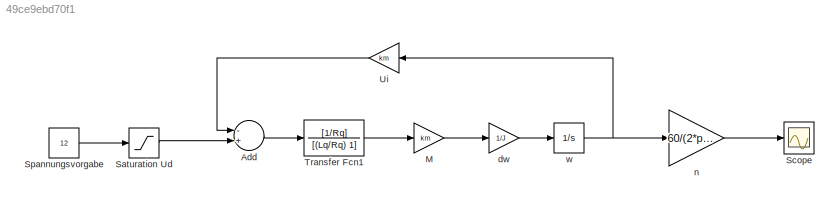
MODEL slx_49ce9ebd70f1
KIND model
CONFIG AbsTol = auto
CONFIG FixedStep = T_tast
CONFIG MaxStep = 0.8
CONFIG MinStep = auto
CONFIG PostLoadFcn = , if any(exist('dsrtsu_mdlpostloadfcn', 'file') == [2, 3, 6]), try dsrtsu_mdlpostloadfcn('Execute', bdroot); catch fprintf('Error in PostLoadFcn (dsrtsu_mdlpostloadfcn) for model "%s":\n %s\n', bdroot, lasterr); end, end, \n,try, xsg_acmc_mdl_postloadfcn(bdroot, 'UpdateModel', 170100); catch, disp(lasterr); end, 
CONFIG PreLoadFcn = ,try, xsg_acmc_mdl_preloadfcn(bdroot, 'LoadModel'); catch, disp(lasterr); end, 
CONFIG RelTol = 1e-9
CONFIG SampleTimeConstraint = Unconstrained
CONFIG Solver = ode15s
CONFIG SolverMode = SingleTasking
CONFIG SolverName = ode15s
CONFIG StartTime = 0
CONFIG StopTime = 40
BLOCK [Sum] Add
  InputSameDT = off
  Inputs = -+
  OutDataTypeStr = Inherit: Inherit via internal rule
  Ports = [2, 1]
  SaturateOnIntegerOverflow = off
BLOCK [Gain] M
  Gain = km
  OutDataTypeStr = Inherit: Inherit via internal rule
  ParamDataTypeStr = Inherit: Inherit via internal rule
  SaturateOnIntegerOverflow = off
BLOCK [Saturate] Saturation Ud
  InputPortMap = u0
  LowerLimit = -Ud
  Ports = [1, 1]
  UpperLimit = Ud
BLOCK [Scope] Scope
  Ports = [1]
  ScopeSpecificationString = Simulink.scopes.TimeScopeBlockCfg('CurrentConfiguration', extmgr.ConfigurationSet(extmgr.Configuration('Core','General UI',true),extmgr.Configuration('Core','Source UI',true),extmgr.Configuration('Sources','WiredSimulink',true,'DataLoggingVariableName','ScopeData1'),extmgr.Configuration('Visuals','Time Domain',true,'SerializedDisplays',{struct('MinYLimReal','-93.62055','MaxYLimReal','842.58499','Y...<+1371ch>
BLOCK [Constant] Spannungsvorgabe
  Value = 12
BLOCK [TransferFcn] Transfer Fcn1
  Denominator = [(Lq/Rq) 1]
  Numerator = [1/Rq]
BLOCK [Gain] Ui
  Gain = km
  OutDataTypeStr = Inherit: Inherit via internal rule
  ParamDataTypeStr = Inherit: Inherit via internal rule
  SaturateOnIntegerOverflow = off
BLOCK [Gain] dw 
  Gain = 1/J
  OutDataTypeStr = Inherit: Inherit via internal rule
  ParamDataTypeStr = Inherit: Inherit via internal rule
  SaturateOnIntegerOverflow = off
BLOCK [Gain] n 
  Gain = 60/(2*pi)
  OutDataTypeStr = Inherit: Inherit via internal rule
  ParamDataTypeStr = Inherit: Inherit via internal rule
  SaturateOnIntegerOverflow = off
BLOCK [Integrator] w
  Ports = [1, 1]
LINE Add:1 -> Transfer Fcn1:1
LINE M:1 -> dw :1
LINE Saturation Ud:1 -> Add:2
LINE Spannungsvorgabe:1 -> Saturation Ud:1
LINE Transfer Fcn1:1 -> M:1
LINE Ui:1 -> Add:1
LINE dw :1 -> w:1
LINE n :1 -> Scope:1
NET w:1 -> Ui:1, n :1
note: NET lines group one-source signal fan-out (src -> all destinations, sorted); 1:1 wires keep LINE
